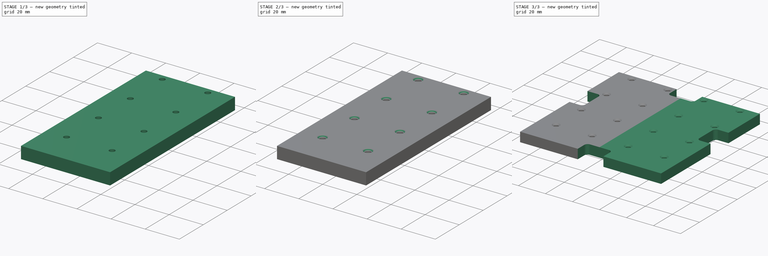
[diagram: build sequence overview — one tinted view per stage of 3, left to right]
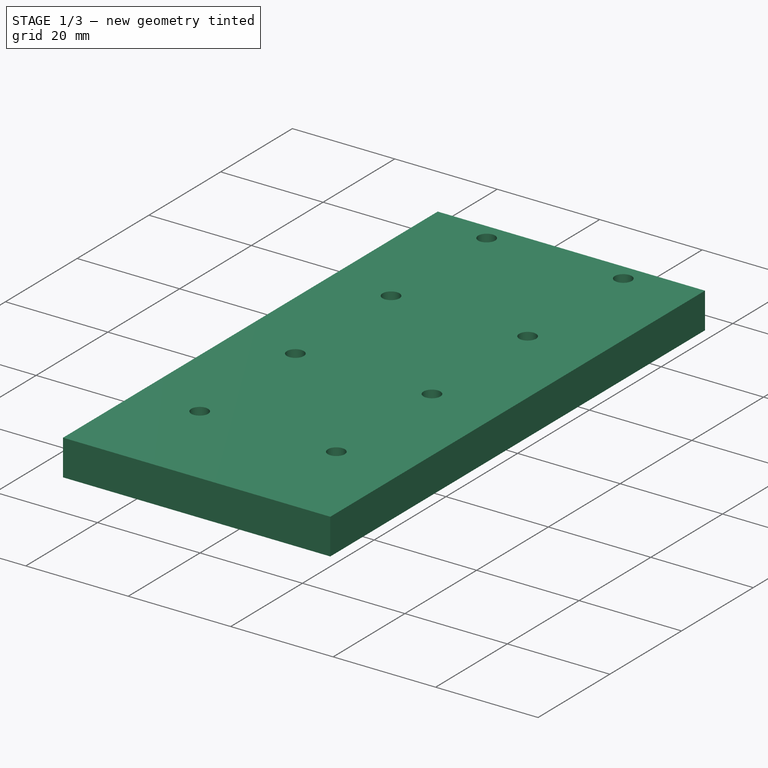
[diagram: stage 1 of 3 — iso view after this stage's code; geometry added in this stage tinted green]
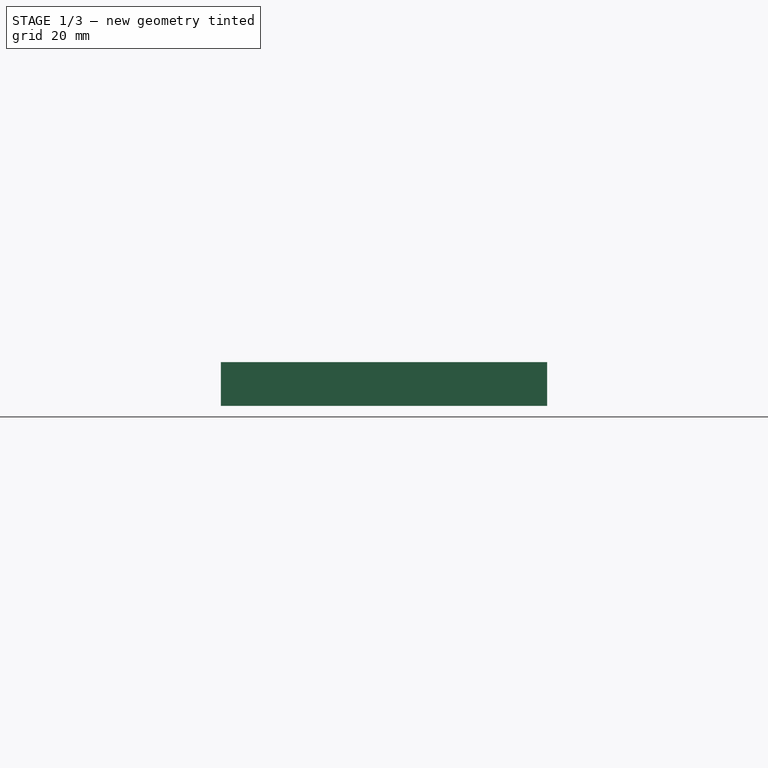
[diagram: stage 1 of 3 — front view after this stage's code; geometry added in this stage tinted green]
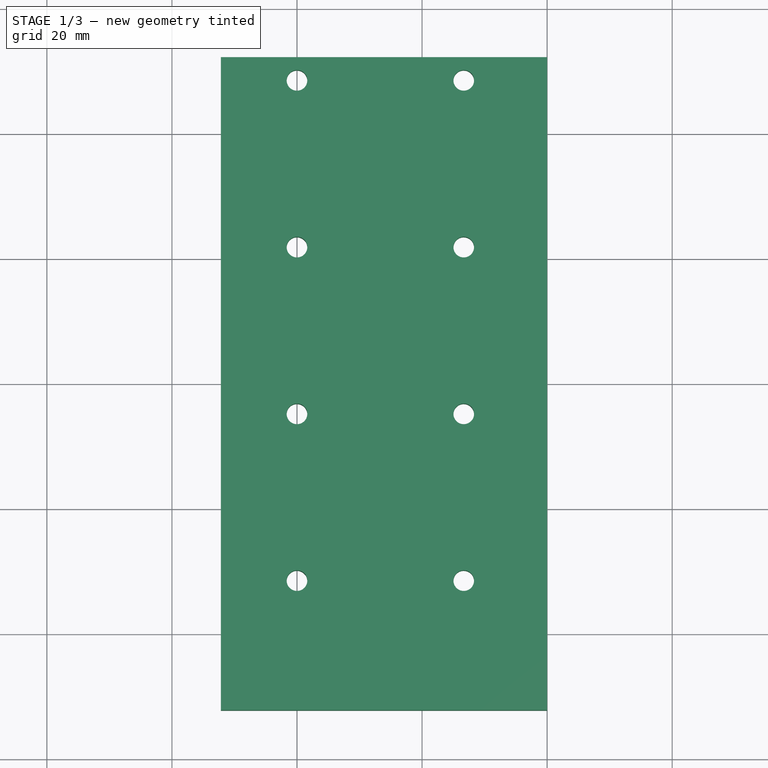
[diagram: stage 1 of 3 — top view after this stage's code; geometry added in this stage tinted green]
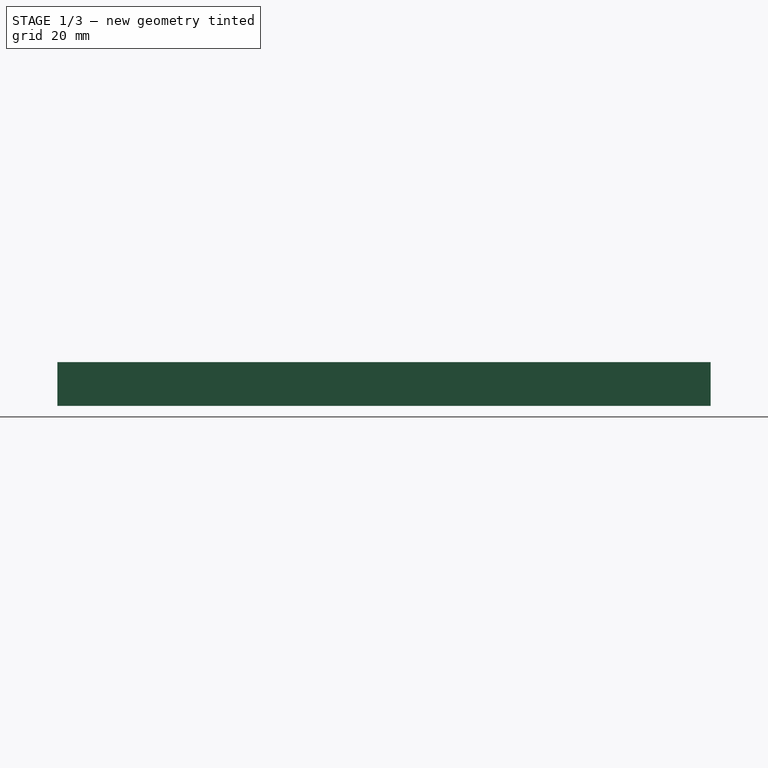
[diagram: stage 1 of 3 — right view after this stage's code; geometry added in this stage tinted green]
FCSTD DOCUMENT  (FreeCAD 0.21R33668 +26 (Git))
Label: lightpipe_press_jig_bottom
License: All rights reserved
LicenseURL: https://en.wikipedia.org/wiki/All_rights_reserved
objects: Sketcher::SketchObject×5, PartDesign::Pocket×2, PartDesign::Pad×1, PartDesign::Chamfer×1, PartDesign::Mirrored×1, PartDesign::Body×1
note: 15 computed .brp shape members not serialized (recipe doc carries the construction recipe); baked Part::Feature solids carry a one-line shape summary decoded from their .brp

FEATURE [Sketcher::SketchObject] Sketch
  FullyConstrained = true
  MapMode = 5
  Support = -> [XY_Plane]
  sketch-geometry (12):
    g0: LineSegment StartX=-52.175 StartY=0 StartZ=0 EndX=-52.175 EndY=52.225 EndZ=0
    g1: LineSegment StartX=-52.175 StartY=52.225 StartZ=0 EndX=0 EndY=52.225 EndZ=0
    g2: LineSegment StartX=0 StartY=0 StartZ=0 EndX=-52.175 EndY=0 EndZ=0
    g3: GeomPoint X=0 Y=0 Z=0
    g4: LineSegment StartX=0 StartY=52.225 StartZ=0 EndX=0 EndY=0 EndZ=0
    g5: Circle CenterX=-40.005 CenterY=48.555 CenterZ=0 NormalX=0 NormalY=0 NormalZ=1 AngleXU=0 Radius=1.6
    g6: Circle CenterX=-13.335 CenterY=48.555 CenterZ=0 NormalX=0 NormalY=0 NormalZ=1 AngleXU=0 Radius=1.6
    g7: Circle CenterX=-40.005 CenterY=21.885 CenterZ=0 NormalX=0 NormalY=0 NormalZ=1 AngleXU=0 Radius=1.6
    g8: Circle CenterX=-13.335 CenterY=21.885 CenterZ=0 NormalX=0 NormalY=0 NormalZ=1 AngleXU=0 Radius=1.6
    g9: LineSegment StartX=-52.175 StartY=0 StartZ=0 EndX=-52.175 EndY=-52.225 EndZ=0
    g10: LineSegment StartX=-52.175 StartY=-52.225 StartZ=0 EndX=0 EndY=-52.225 EndZ=0
    g11: LineSegment StartX=0 StartY=-52.225 StartZ=0 EndX=0 EndY=0 EndZ=0
  constraints (32):
    c: Coincident(g0,g1)
    c: Coincident(g2,g0)
    c: Horizontal(g1)
    c: Horizontal(g2)
    c: Vertical(g0)
    c: Coincident(g3,g-1)
    c: Vertical(g4)
    c: Coincident(g1,g4)
    c: Coincident(g2,g4)
    c: DistanceX(g1,g1) = 52.175
    c: Equal(g5,g6)
    c: Equal(g8,g7)
    c: Diameter(g6) = 3.2
    c: Horizontal(g6,g5)
    c: Horizontal(g8,g7)
    c: Vertical(g7,g5)
    c: DistanceX(g5,g6) = 26.67
    c: DistanceY(g8,g6) = 26.67
    c: Equal(g8,g6)
    c: DistanceX(g6,g3) = 13.335
    c: DistanceY(g0,g0) = 52.225
    c: DistanceY(g5,g0) = 3.67
    c: Vertical(g8,g6)
    c: Coincident(g9,g0)
    c: Vertical(g9)
    c: Coincident(g10,g9)
    c: PointOnObject(g10,g-2)
    c: Horizontal(g10)
    c: Coincident(g4,g3)
    c: Equal(g9,g0)
    c: Coincident(g11,g10)
    c: Coincident(g11,g4)
FEATURE [PartDesign::Pad] Pad
  Direction = (0,0,1)
  Length = 7
  Length2 = 10
  Profile = -> Sketch
  ReferenceAxis = -> Sketch [N_Axis]
  Reversed = true
  Type = 0
FEATURE [Sketcher::SketchObject] Sketch001
  FullyConstrained = true
  MapMode = 5
  Support = -> [XY_Plane]
  sketch-geometry (18):
    g0: LineSegment StartX=-52.175 StartY=0 StartZ=0 EndX=-52.175 EndY=52.175 EndZ=0
    g1: LineSegment StartX=-52.175 StartY=52.175 StartZ=0 EndX=0 EndY=52.175 EndZ=0
    g2: LineSegment StartX=0 StartY=0 StartZ=0 EndX=-52.175 EndY=0 EndZ=0
    g3: GeomPoint X=0 Y=0 Z=0
    g4: LineSegment StartX=0 StartY=52.175 StartZ=0 EndX=0 EndY=0 EndZ=0
    g5: Circle CenterX=-40.005 CenterY=48.505 CenterZ=0 NormalX=0 NormalY=0 NormalZ=1 AngleXU=0 Radius=1.65
    g6: Circle CenterX=-13.335 CenterY=48.505 CenterZ=0 NormalX=0 NormalY=0 NormalZ=1 AngleXU=0 Radius=1.65
    g7: Circle CenterX=-40.005 CenterY=21.835 CenterZ=0 NormalX=0 NormalY=0 NormalZ=1 AngleXU=0 Radius=1.65
    g8: Circle CenterX=-13.335 CenterY=21.835 CenterZ=0 NormalX=0 NormalY=0 NormalZ=1 AngleXU=0 Radius=1.65
    g9: GeomPoint X=-13.335 Y=8.5 Z=0
    g10: Circle CenterX=-40.005 CenterY=-31.505 CenterZ=0 NormalX=0 NormalY=0 NormalZ=1 AngleXU=0 Radius=1.65
    g11: Circle CenterX=-13.335 CenterY=-31.505 CenterZ=0 NormalX=0 NormalY=0 NormalZ=1 AngleXU=0 Radius=1.65
    g12: Circle CenterX=-40.005 CenterY=-4.835 CenterZ=0 NormalX=0 NormalY=0 NormalZ=1 AngleXU=0 Radius=1.65
    g13: Circle CenterX=-13.335 CenterY=-4.835 CenterZ=0 NormalX=0 NormalY=0 NormalZ=1 AngleXU=0 Radius=1.65
    g14: LineSegment StartX=-40.005 StartY=48.505 StartZ=0 EndX=-13.335 EndY=48.505 EndZ=0
    g15: LineSegment StartX=-13.335 StartY=48.505 StartZ=0 EndX=-13.335 EndY=21.835 EndZ=0
    g16: LineSegment StartX=-40.005 StartY=-4.835 StartZ=0 EndX=-13.335 EndY=-4.835 EndZ=0
    g17: LineSegment StartX=-13.335 StartY=-4.835 StartZ=0 EndX=-13.335 EndY=-31.505 EndZ=0
  constraints (46):
    c: Coincident(g0,g1)
    c: Coincident(g2,g0)
    c: Horizontal(g1)
    c: Horizontal(g2)
    c: Vertical(g0)
    c: Coincident(g3,g-1)
    c: Vertical(g4)
    c: Coincident(g1,g4)
    c: Coincident(g2,g4)
    c: DistanceX(g1,g1) = 52.175
    c: Equal(g5,g6)
    c: Equal(g8,g7)
    c: Diameter(g6) = 3.3
    c: Horizontal(g6,g5)
    c: Horizontal(g8,g7)
    c: Vertical(g7,g5)
    c: DistanceX(g5,g6) = 26.67
    c: DistanceY(g8,g6) = 26.67
    c: Equal(g8,g6)
    c: DistanceX(g6,g3) = 13.335
    c: DistanceY(g0,g0) = 52.175
    c: Coincident(g3,g2)
    c: Vertical(g8,g6)
    c: Vertical(g9,g8)
    c: DistanceY(g9,g8) = 13.335
    c: DistanceY(g2,g9) = 8.5
    c: Equal(g10,g11)
    c: Equal(g13,g12)
    c: Diameter(g11) = 3.3
    c: Equal(g13,g11)
    c: Horizontal(g13,g12)
    c: Horizontal(g11,g10)
    c: Vertical(g13,g11)
    c: Vertical(g12,g10)
    c: Vertical(g12,g7)
    c: Vertical(g13,g8)
    c: Coincident(g14,g5)
    c: Coincident(g14,g6)
    c: Coincident(g15,g6)
    c: Coincident(g15,g8)
    c: Coincident(g16,g12)
    c: Coincident(g16,g13)
    c: Coincident(g17,g13)
    c: Coincident(g17,g11)
    c: Equal(g17,g15)
    c: DistanceY(g13,g9) = 13.335
FEATURE [PartDesign::Pocket] Pocket
  BaseFeature = -> Pad
  Direction = (0,0,-1)
  Length = 5
  Length2 = 5
  Midplane = true
  Profile = -> Sketch001
  ReferenceAxis = -> Sketch001 [N_Axis]
  Type = 1
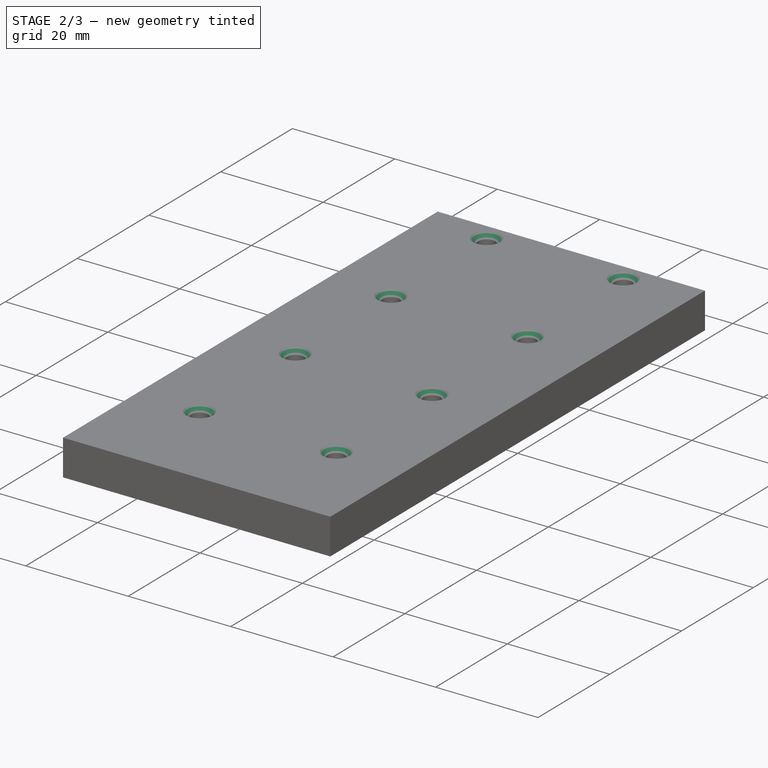
[diagram: stage 2 of 3 — iso view after this stage's code; geometry added in this stage tinted green]
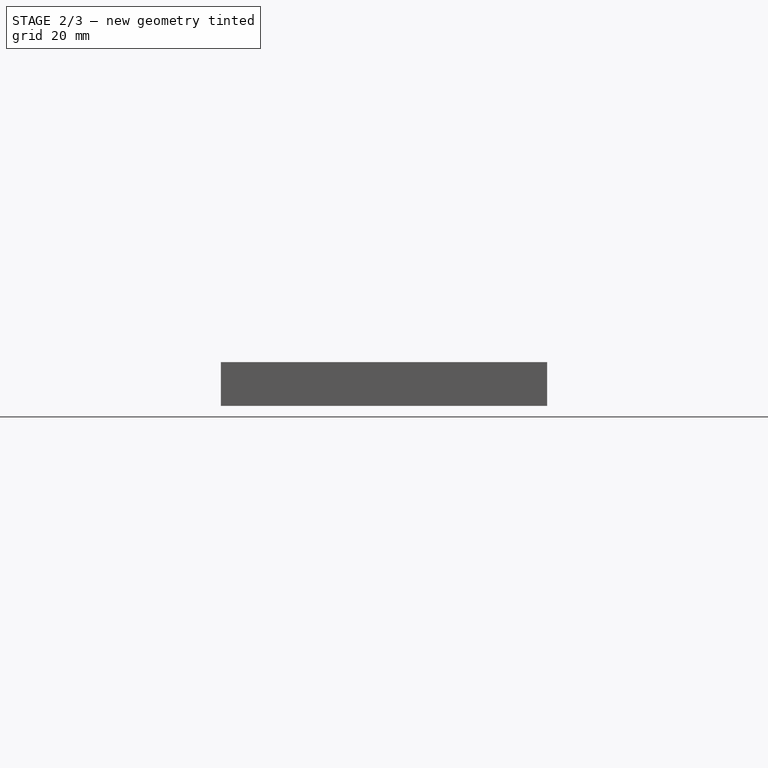
[diagram: stage 2 of 3 — front view after this stage's code; geometry added in this stage tinted green]
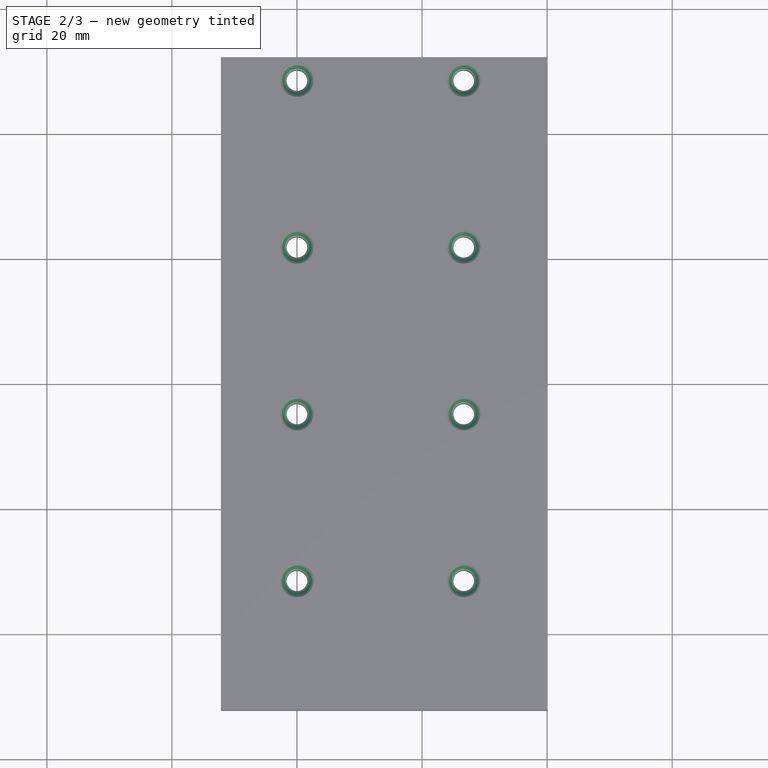
[diagram: stage 2 of 3 — top view after this stage's code; geometry added in this stage tinted green]
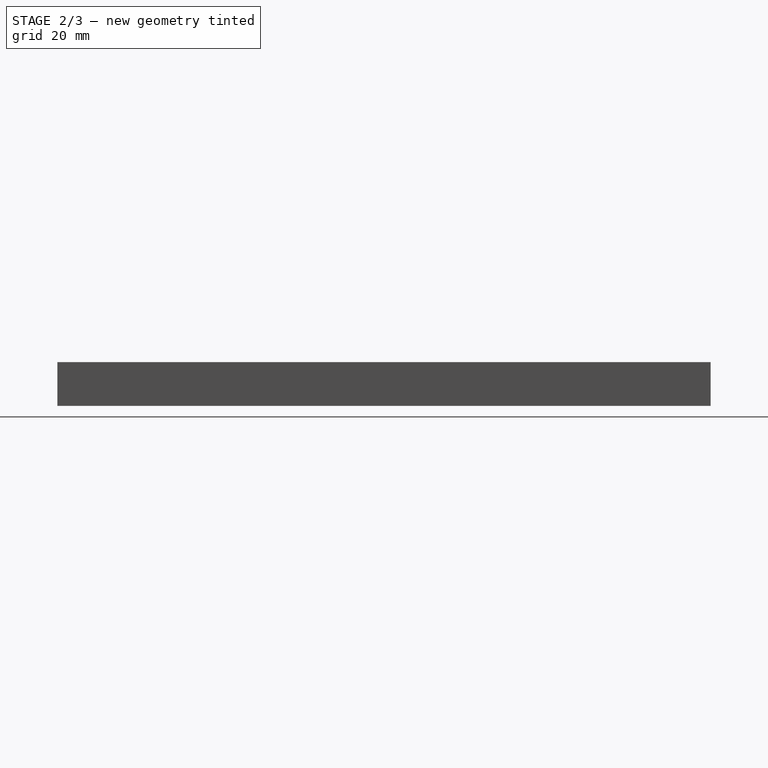
[diagram: stage 2 of 3 — right view after this stage's code; geometry added in this stage tinted green]
FEATURE [Sketcher::SketchObject] Sketch002
  FullyConstrained = true
  MapMode = 5
  Support = -> [XY_Plane]
  sketch-geometry (6):
    g0: LineSegment StartX=-60 StartY=-12.5 StartZ=0 EndX=-60 EndY=12.5 EndZ=0
    g1: LineSegment StartX=-60 StartY=12.5 StartZ=0 EndX=-55 EndY=12.5 EndZ=0
    g2: LineSegment StartX=-53 StartY=10.5 StartZ=0 EndX=-53 EndY=-10.5 EndZ=0
    g3: LineSegment StartX=-55 StartY=-12.5 StartZ=0 EndX=-60 EndY=-12.5 EndZ=0
    g4: ArcOfCircle CenterX=-55 CenterY=10.5 CenterZ=0 NormalX=0 NormalY=0 NormalZ=1 AngleXU=0 Radius=2 StartAngle=0 EndAngle=1.5708
    g5: ArcOfCircle CenterX=-55 CenterY=-10.5 CenterZ=0 NormalX=0 NormalY=0 NormalZ=1 AngleXU=0 Radius=2 StartAngle=4.71239 EndAngle=6.28319
  constraints (15):
    c: Coincident(g0,g1)
    c: Coincident(g3,g0)
    c: Horizontal(g1)
    c: Horizontal(g3)
    c: Vertical(g2)
    c: DistanceX(g0,g-1) = 60
    c: Tangent(g1,g4) = 1.5708
    c: Tangent(g2,g4) = 1.5708
    c: Tangent(g2,g5) = 1.5708
    c: Tangent(g3,g5) = 1.5708
    c: DistanceY(g3,g1) = 25
    c: DistanceX(g0,g2) = 7
    c: Equal(g4,g5)
    c: Diameter(g4) = 4
    c: Symmetric(g0,g0,g-1)
FEATURE [PartDesign::Chamfer] Chamfer001
  Angle = 45
  Base = -> Pocket [Edge19,Edge18,Edge15,Edge14,Edge16,Edge17,Edge20,Edge21]
  BaseFeature = -> Pocket
  ChamferType = 0
  FlipDirection = false
  Size = 1
  Size2 = 1
  SupportTransform = false
  UseAllEdges = false
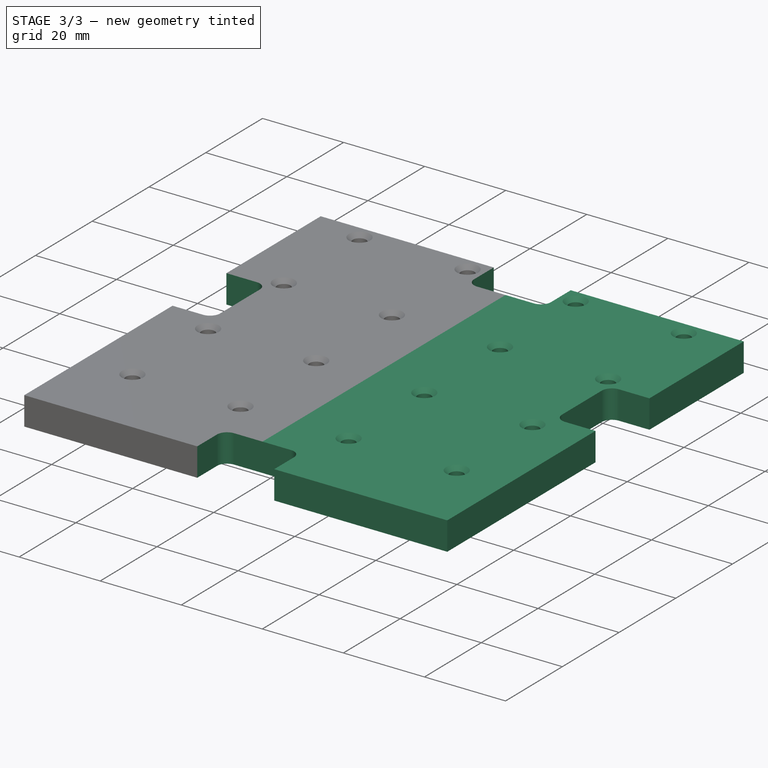
[diagram: stage 3 of 3 — iso view after this stage's code; geometry added in this stage tinted green]
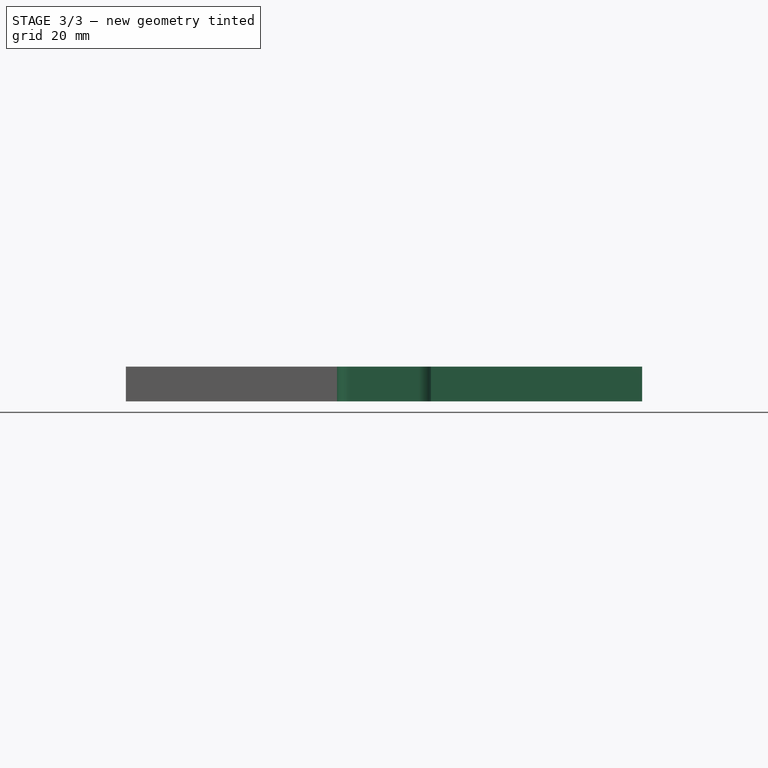
[diagram: stage 3 of 3 — front view after this stage's code; geometry added in this stage tinted green]
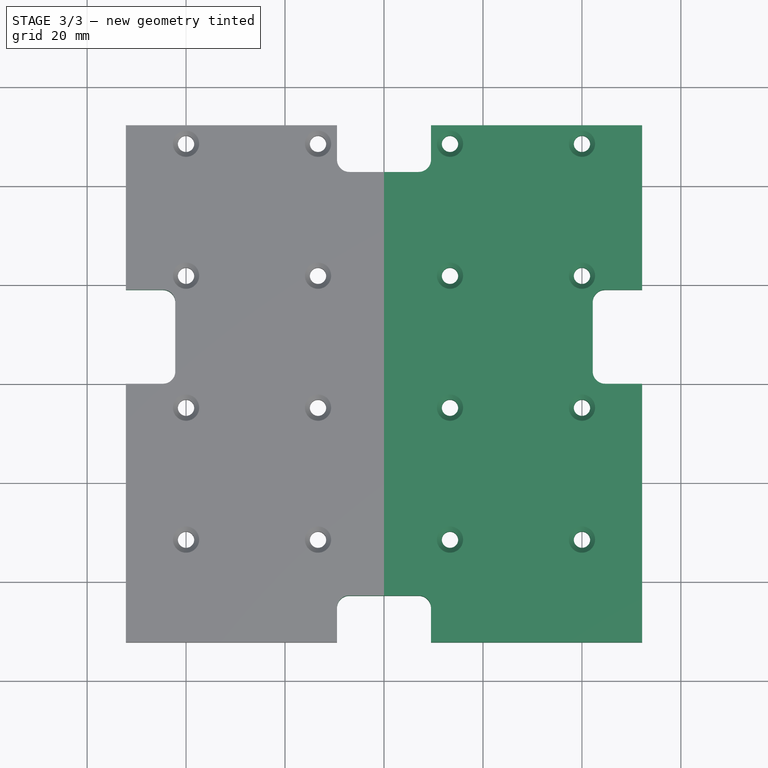
[diagram: stage 3 of 3 — top view after this stage's code; geometry added in this stage tinted green]
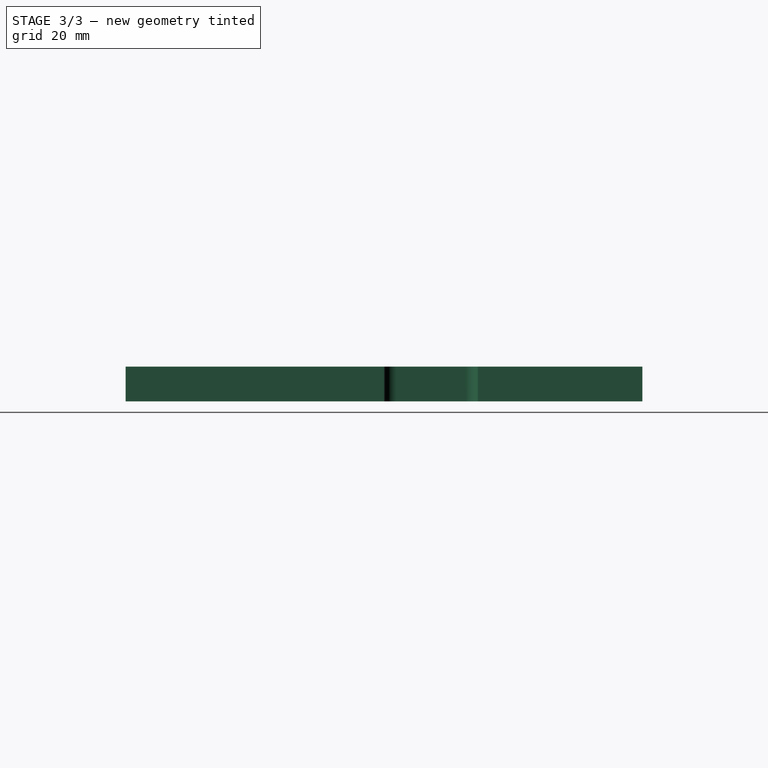
[diagram: stage 3 of 3 — right view after this stage's code; geometry added in this stage tinted green]
FEATURE [Sketcher::SketchObject] Sketch003
  FullyConstrained = true
  MapMode = 5
  Support = -> [XY_Plane]
  sketch-geometry (1):
    g0: Circle CenterX=-26.0875 CenterY=0 CenterZ=0 NormalX=0 NormalY=0 NormalZ=1 AngleXU=0 Radius=2.4
  constraints (3):
    c: PointOnObject(g0,g-1)
    c: Diameter(g0) = 4.8
    c: DistanceX(g0,g-1) = 26.0875
FEATURE [PartDesign::Mirrored] Mirrored
  BaseFeature = -> Chamfer001
  MirrorPlane = -> YZ_Plane
  Originals = -> [Pad,Pocket,Chamfer001]
FEATURE [Sketcher::SketchObject] Sketch004
  FullyConstrained = true
  MapMode = 5
  Support = -> [XY_Plane]
  sketch-geometry (24):
    g0: LineSegment StartX=-52.175 StartY=0 StartZ=0 EndX=-44.675 EndY=0 EndZ=0
    g1: LineSegment StartX=-42.175 StartY=2.5 StartZ=0 EndX=-42.175 EndY=16.5 EndZ=0
    g2: LineSegment StartX=-44.675 StartY=19 StartZ=0 EndX=-52.175 EndY=19 EndZ=0
    g3: LineSegment StartX=-52.175 StartY=19 StartZ=0 EndX=-52.175 EndY=0 EndZ=0
    g4: ArcOfCircle CenterX=-44.675 CenterY=16.5 CenterZ=0 NormalX=0 NormalY=0 NormalZ=1 AngleXU=0 Radius=2.5 StartAngle=0 EndAngle=1.5708
    g5: ArcOfCircle CenterX=-44.675 CenterY=2.5 CenterZ=0 NormalX=0 NormalY=0 NormalZ=1 AngleXU=0 Radius=2.5 StartAngle=4.71239 EndAngle=6.28319
    g6: LineSegment StartX=-9.5 StartY=52.8 StartZ=0 EndX=9.5 EndY=52.8 EndZ=0
    g7: LineSegment StartX=9.5 StartY=52.8 StartZ=0 EndX=9.5 EndY=45.3 EndZ=0
    g8: LineSegment StartX=7 StartY=42.8 StartZ=0 EndX=-7 EndY=42.8 EndZ=0
    g9: LineSegment StartX=-9.5 StartY=45.3 StartZ=0 EndX=-9.5 EndY=52.8 EndZ=0
    g10: LineSegment StartX=-9.5 StartY=-52.8 StartZ=0 EndX=9.5 EndY=-52.8 EndZ=0
    g11: LineSegment StartX=9.5 StartY=-52.8 StartZ=0 EndX=9.5 EndY=-45.3 EndZ=0
    g12: LineSegment StartX=7 StartY=-42.8 StartZ=0 EndX=-7 EndY=-42.8 EndZ=0
    g13: LineSegment StartX=-9.5 StartY=-45.3 StartZ=0 EndX=-9.5 EndY=-52.8 EndZ=0
    g14: LineSegment StartX=52.175 StartY=0 StartZ=0 EndX=44.675 EndY=0 EndZ=0
    g15: LineSegment StartX=42.175 StartY=2.5 StartZ=0 EndX=42.175 EndY=16.5 EndZ=0
    g16: LineSegment StartX=44.675 StartY=19 StartZ=0 EndX=52.175 EndY=19 EndZ=0
    g17: LineSegment StartX=52.175 StartY=19 StartZ=0 EndX=52.175 EndY=0 EndZ=0
    g18: ArcOfCircle CenterX=-7 CenterY=45.3 CenterZ=0 NormalX=0 NormalY=0 NormalZ=1 AngleXU=0 Radius=2.5 StartAngle=3.14159 EndAngle=4.71239
    g19: ArcOfCircle CenterX=7 CenterY=45.3 CenterZ=0 NormalX=0 NormalY=0 NormalZ=1 AngleXU=0 Radius=2.5 StartAngle=4.71239 EndAngle=6.28319
    g20: ArcOfCircle CenterX=44.675 CenterY=2.5 CenterZ=0 NormalX=0 NormalY=0 NormalZ=1 AngleXU=0 Radius=2.5 StartAngle=3.14159 EndAngle=4.71239
    g21: ArcOfCircle CenterX=44.675 CenterY=16.5 CenterZ=0 NormalX=0 NormalY=0 NormalZ=1 AngleXU=0 Radius=2.5 StartAngle=1.5708 EndAngle=3.14159
    g22: ArcOfCircle CenterX=7 CenterY=-45.3 CenterZ=0 NormalX=0 NormalY=0 NormalZ=1 AngleXU=0 Radius=2.5 StartAngle=9e-16 EndAngle=1.5708
    g23: ArcOfCircle CenterX=-7 CenterY=-45.3 CenterZ=0 NormalX=0 NormalY=0 NormalZ=1 AngleXU=0 Radius=2.5 StartAngle=1.5708 EndAngle=3.14159
  constraints (60):
    c: Coincident(g2,g3)
    c: Coincident(g3,g0)
    c: Horizontal(g0)
    c: Horizontal(g2)
    c: Vertical(g1)
    c: Vertical(g3)
    c: PointOnObject(g0,g-1)
    c: Tangent(g2,g4) = -1.5708
    c: Tangent(g1,g4) = -1.5708
    c: Tangent(g1,g5) = -1.5708
    c: Tangent(g0,g5) = -1.5708
    c: Equal(g4,g5)
    c: DistanceY(g0,g2) = 19
    c: DistanceX(g0,g1) = 10
    c: DistanceX(g0,g-1) = 52.175
    c: Diameter(g5) = 5
    c: Coincident(g6,g7)
    c: Coincident(g9,g6)
    c: Horizontal(g8)
    c: Vertical(g7)
    c: Vertical(g9)
    c: Coincident(g10,g11)
    c: Coincident(g13,g10)
    c: Horizontal(g12)
    c: Vertical(g11)
    c: Vertical(g13)
    c: Coincident(g16,g17)
    c: Coincident(g17,g14)
    c: Horizontal(g14)
    c: Horizontal(g16)
    c: Vertical(g15)
    c: Vertical(g17)
    c: Tangent(g8,g18) = 1.5708
    c: Tangent(g9,g18) = 1.5708
    c: Tangent(g7,g19) = 1.5708
    c: Tangent(g8,g19) = 1.5708
    c: Tangent(g15,g20) = 1.5708
    c: Tangent(g14,g20) = 1.5708
    c: Tangent(g15,g21) = 1.5708
    c: Tangent(g16,g21) = 1.5708
    c: Tangent(g11,g22) = -1.5708
    c: Tangent(g12,g22) = -1.5708
    c: Tangent(g12,g23) = -1.5708
    c: Tangent(g13,g23) = -1.5708
    c: Equal(g18,g19)
    c: Equal(g19,g21)
    c: Equal(g21,g20)
    c: Equal(g20,g22)
    c: Equal(g22,g23)
    c: Equal(g23,g5)
    c: Symmetric(g10,g10,g-2)
    c: Symmetric(g6,g6,g-2)
    c: Horizontal(g16,g2)
    c: DistanceX(g15,g14) = 10
    c: DistanceY(g-1,g6) = 52.8
    c: Symmetric(g14,g0,g-1)
    c: Symmetric(g6,g10,g-1)
    c: Equal(g6,g3)
    c: DistanceY(g10,g12) = 10
    c: DistanceY(g8,g6) = 10
FEATURE [PartDesign::Pocket] Pocket001
  BaseFeature = -> Mirrored
  Direction = (0,0,-1)
  Length = 5
  Length2 = 5
  Profile = -> Sketch004
  ReferenceAxis = -> Sketch004 [N_Axis]
  Type = 1
FEATURE [PartDesign::Body] Body
  Group = -> [Sketch,Pad,Sketch001,Pocket,Sketch002,Chamfer001,Sketch003,Mirrored,Sketch004,Pocket001]
  Origin = -> Origin
  Tip = -> Pocket001
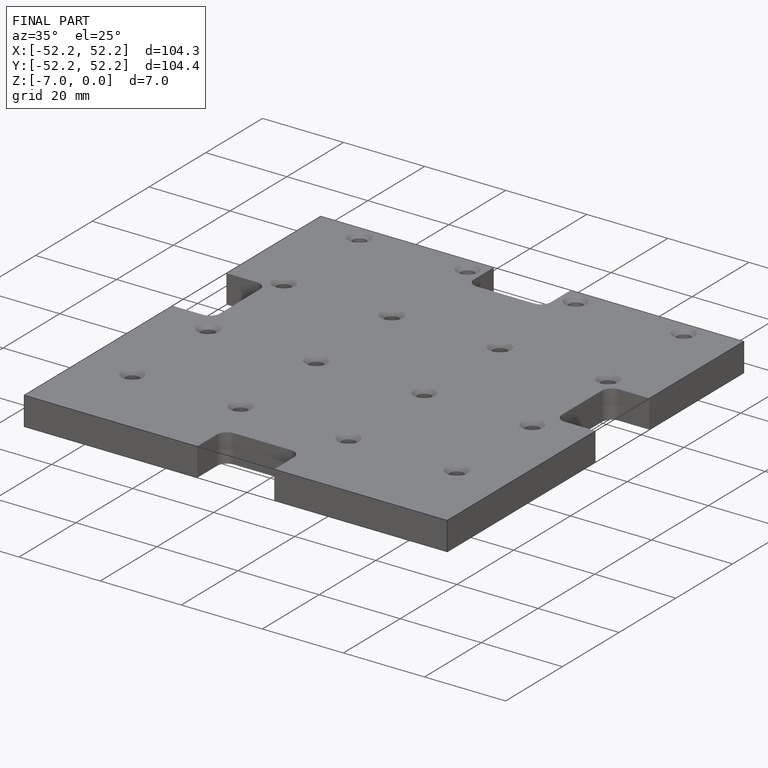
[diagram: finished part — iso view with bounding-box wireframe]
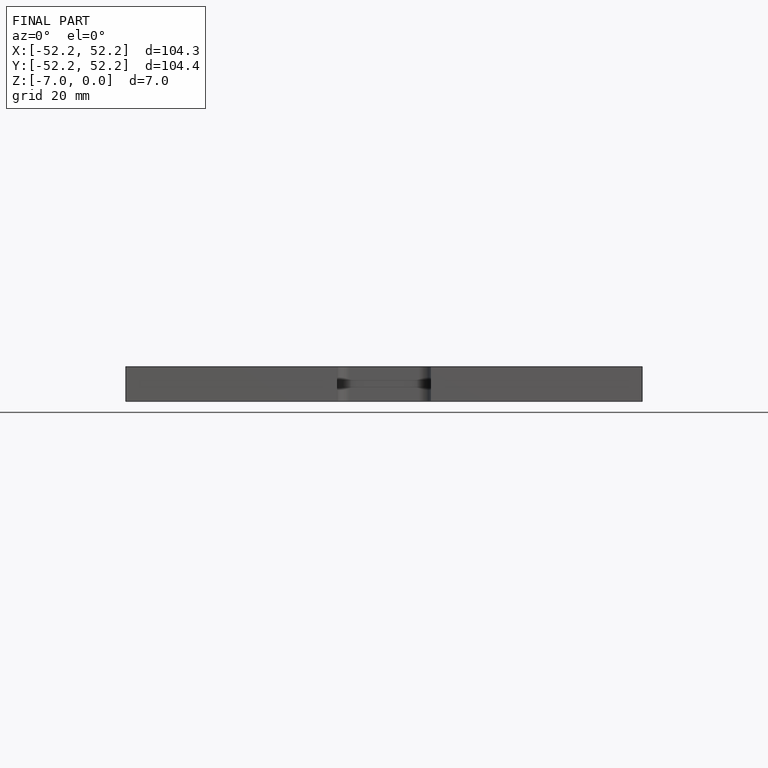
[diagram: finished part — front view with bounding-box wireframe]
